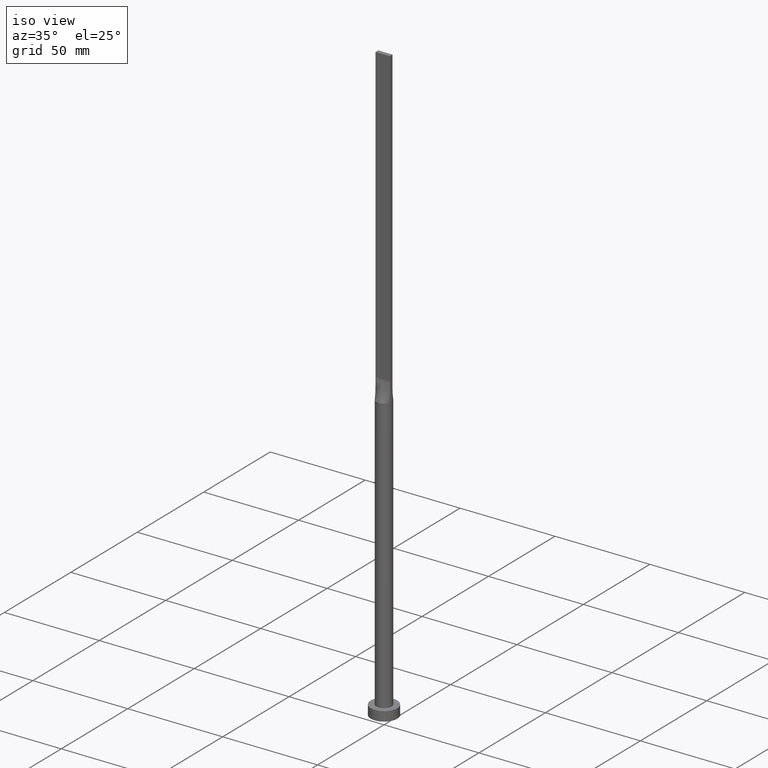
[diagram: clean part render]
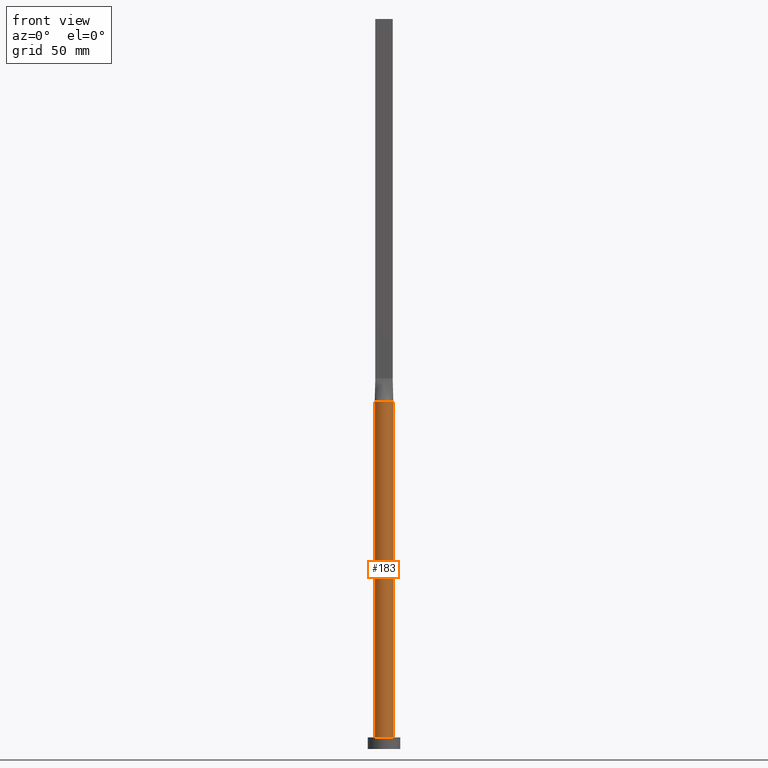
[diagram: tour spotlight — one face highlighted and labeled with its STEP entity id]
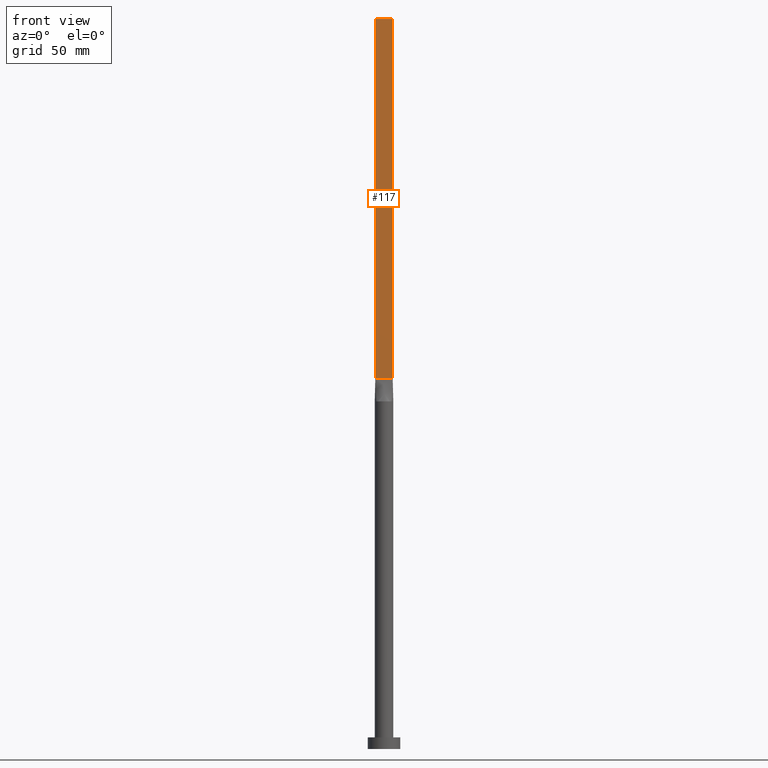
[diagram: tour spotlight — one face highlighted and labeled with its STEP entity id]
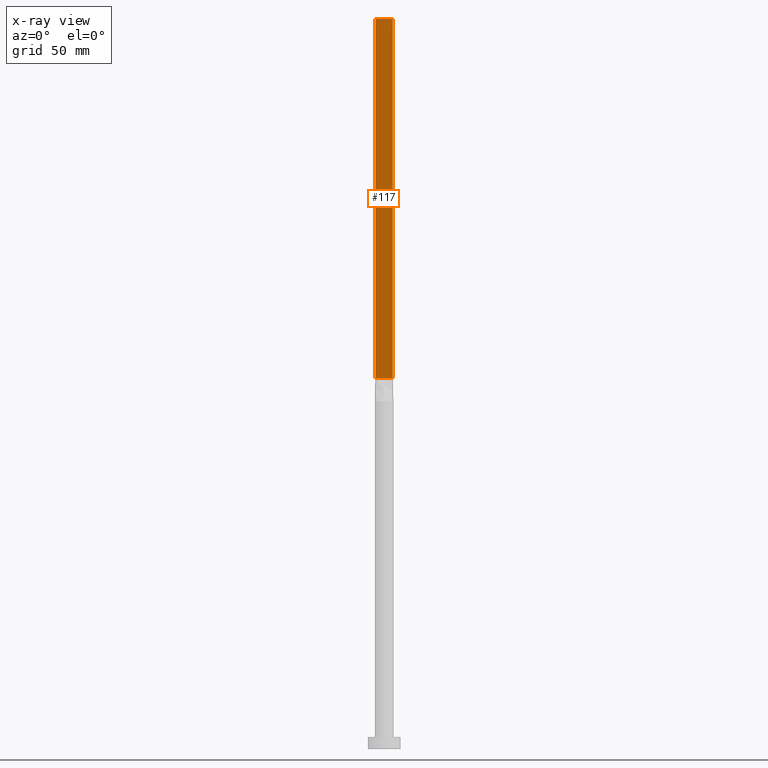
[diagram: x-ray of the same camera — body ghosted, this tour face saturated]
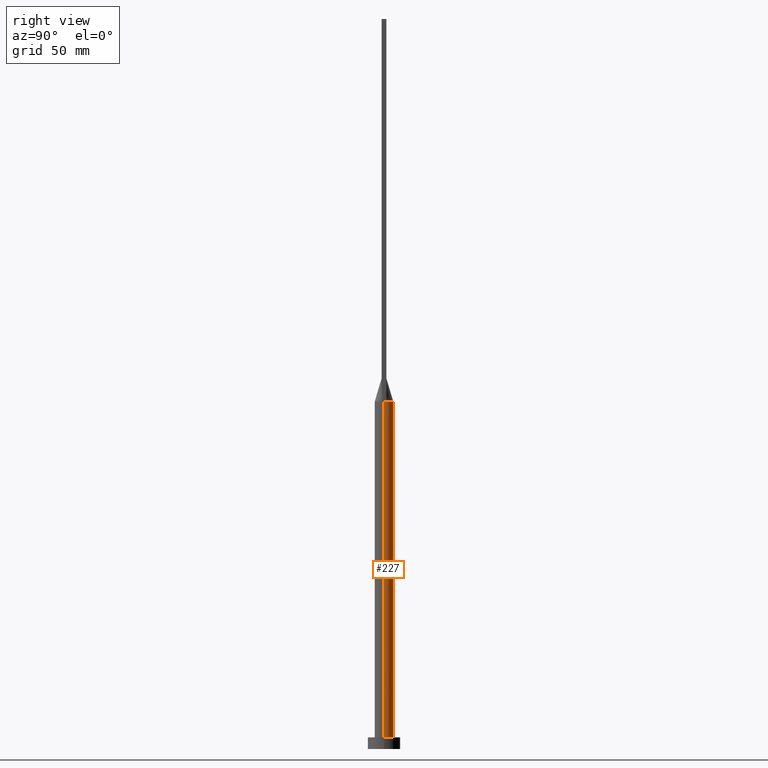
[diagram: tour spotlight — one face highlighted and labeled with its STEP entity id]
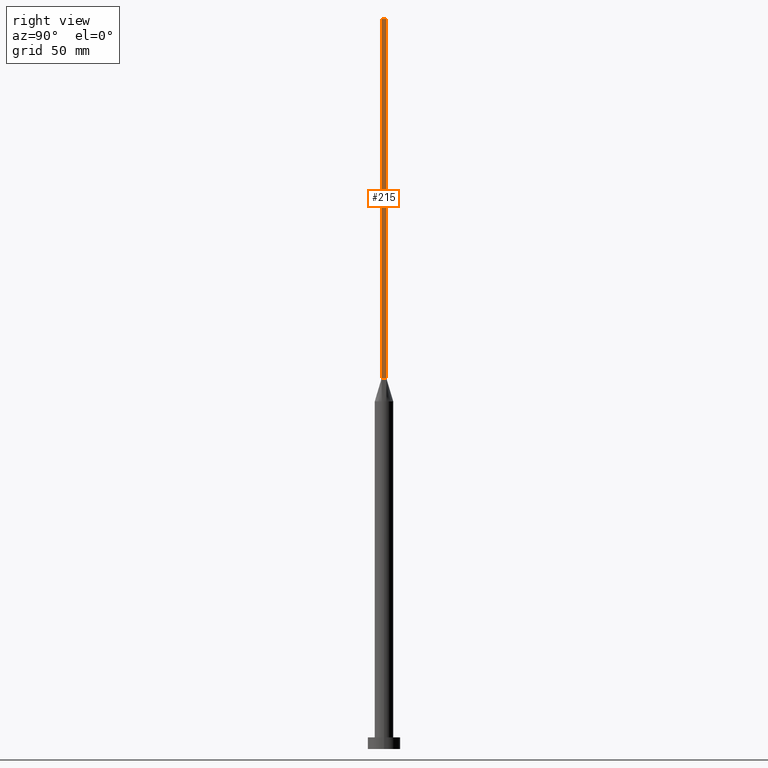
[diagram: tour spotlight — one face highlighted and labeled with its STEP entity id]
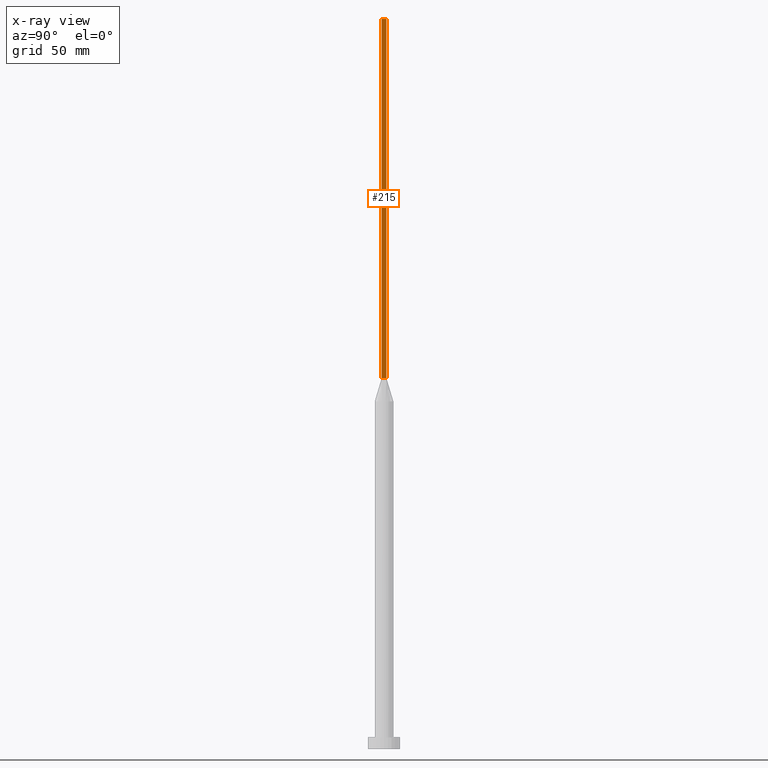
[diagram: x-ray of the same camera — body ghosted, this tour face saturated]
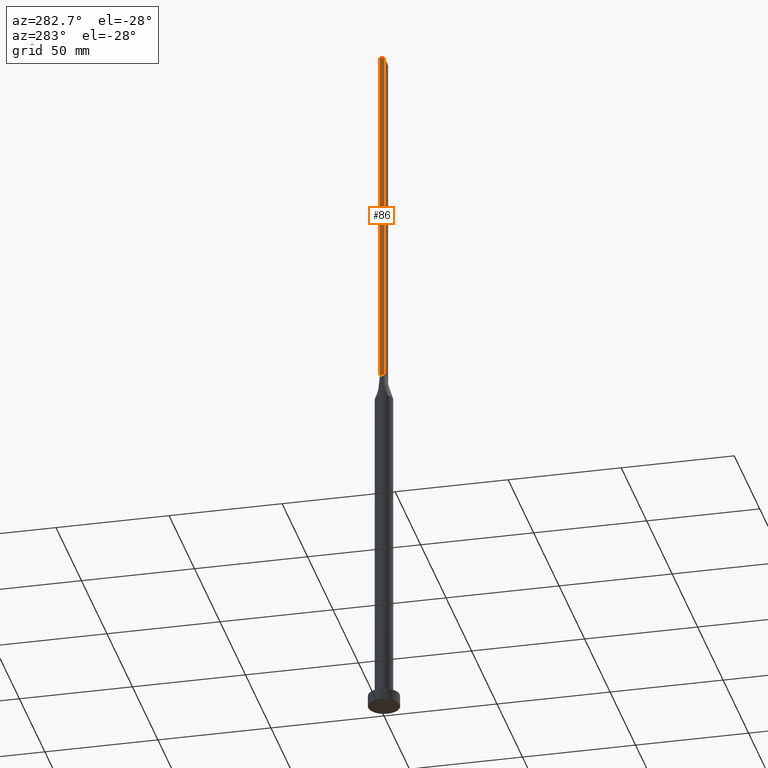
[diagram: tour spotlight — one face highlighted and labeled with its STEP entity id]
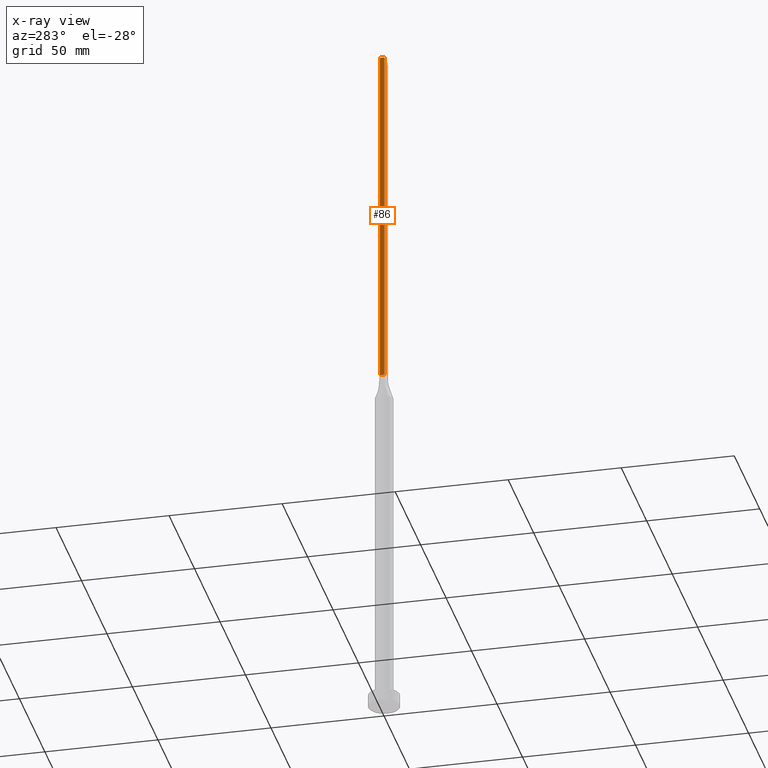
[diagram: x-ray of the same camera — body ghosted, this tour face saturated]
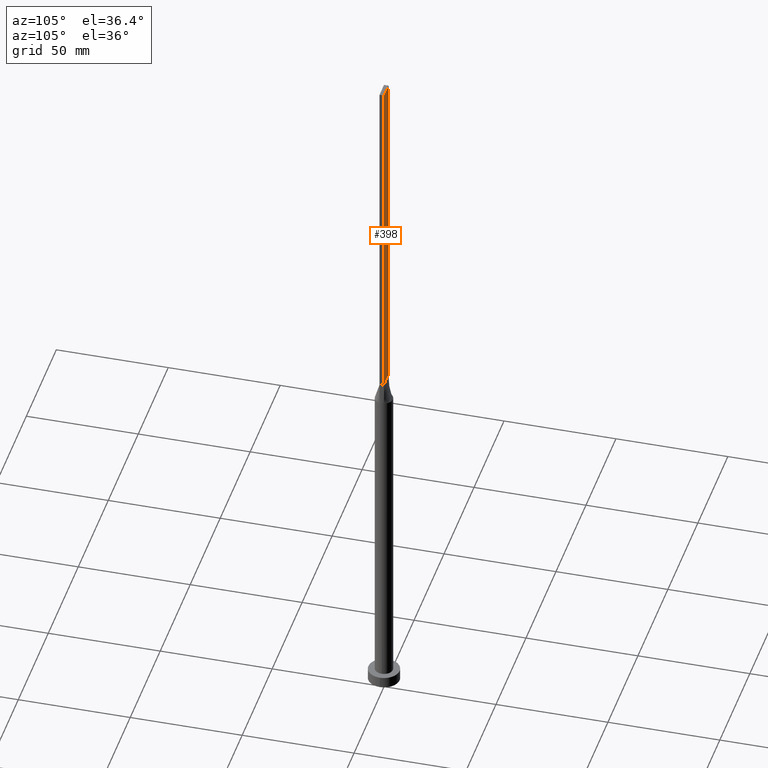
[diagram: tour spotlight — one face highlighted and labeled with its STEP entity id]
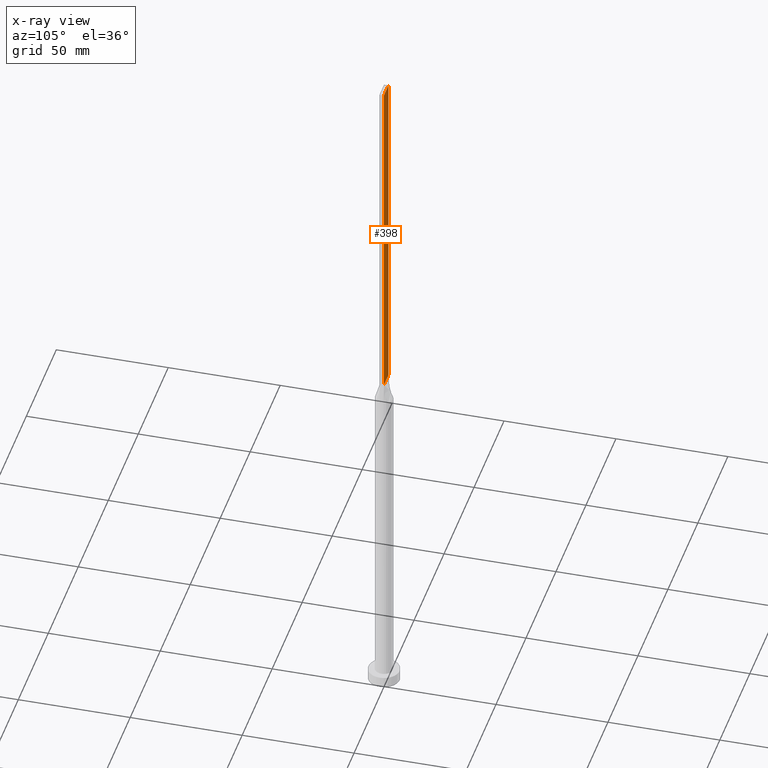
[diagram: x-ray of the same camera — body ghosted, this tour face saturated]
A machine part: a face-by-face anatomy tour. The part has 15 B-rep faces; the first image is the clean iso view, then the 6 largest visible faces are spotlighted one at a time (largest first), each with its STEP entity span.

Face 1 — front view, entity #183. In plain terms, the highlighted cylindrical surface (edge-blend (fillet) strip) has radius 4 mm, axis along (-0, -0, -1).
Definition (entity closure, byte-faithful):
#3 = EDGE_CURVE ( 'NONE', #90, #185, #107, .T. ) ;
#45 = VECTOR ( 'NONE', #448, 1000.000000000000000 ) ;
#48 = DIRECTION ( 'NONE',  ( 0.000000000000000000, 0.000000000000000000, 1.000000000000000000 ) ) ;
#54 = VECTOR ( 'NONE', #478, 1000.000000000000000 ) ;
#90 = VERTEX_POINT ( 'NONE', #125 ) ;
#91 = DIRECTION ( 'NONE',  ( 1.000000000000000000, 0.000000000000000000, 0.000000000000000000 ) ) ;
#107 = LINE ( 'NONE', #342, #54 ) ;
#125 = CARTESIAN_POINT ( 'NONE',  ( -4.000000000000000000, -2.459132308497027359E-16, 150.0000000000000000 ) ) ;
#130 = VERTEX_POINT ( 'NONE', #402 ) ;
#132 = ORIENTED_EDGE ( 'NONE', *, *, #275, .F. ) ;
#137 = DIRECTION ( 'NONE',  ( 0.000000000000000000, 0.000000000000000000, 1.000000000000000000 ) ) ;
#138 = ORIENTED_EDGE ( 'NONE', *, *, #250, .F. ) ;
#141 = EDGE_LOOP ( 'NONE', ( #230, #213, #138, #132, #502, #357 ) ) ;
#160 = AXIS2_PLACEMENT_3D ( 'NONE', #373, #48, #91 ) ;
#168 = DIRECTION ( 'NONE',  ( -0.000000000000000000, -0.000000000000000000, -1.000000000000000000 ) ) ;
#170 = CIRCLE ( 'NONE', #365, 4.000000000000000000 ) ;
#183 = ADVANCED_FACE ( 'NONE', ( #394 ), #572, .T. ) ;
#185 = VERTEX_POINT ( 'NONE', #356 ) ;
#190 = CIRCLE ( 'NONE', #513, 4.000000000000000000 ) ;
#198 = EDGE_CURVE ( 'NONE', #272, #130, #533, .T. ) ;
#213 = ORIENTED_EDGE ( 'NONE', *, *, #198, .F. ) ;
#220 = LINE ( 'NONE', #534, #45 ) ;
#230 = ORIENTED_EDGE ( 'NONE', *, *, #446, .F. ) ;
#235 = CARTESIAN_POINT ( 'NONE',  ( 0.000000000000000000, 0.000000000000000000, 150.0000000000000000 ) ) ;
#250 = EDGE_CURVE ( 'NONE', #464, #272, #170, .T. ) ;
#262 = DIRECTION ( 'NONE',  ( -1.000000000000000000, 0.000000000000000000, 0.000000000000000000 ) ) ;
#266 = DIRECTION ( 'NONE',  ( 0.000000000000000000, 0.000000000000000000, 1.000000000000000000 ) ) ;
#268 = EDGE_CURVE ( 'NONE', #185, #418, #553, .T. ) ;
#270 = CARTESIAN_POINT ( 'NONE',  ( 0.000000000000000000, 0.000000000000000000, 150.0000000000000000 ) ) ;
#272 = VERTEX_POINT ( 'NONE', #367 ) ;
#275 = EDGE_CURVE ( 'NONE', #90, #464, #190, .T. ) ;
#276 = AXIS2_PLACEMENT_3D ( 'NONE', #235, #266, #363 ) ;
#277 = CARTESIAN_POINT ( 'NONE',  ( 0.000000000000000000, 0.000000000000000000, 150.0000000000000000 ) ) ;
#315 = AXIS2_PLACEMENT_3D ( 'NONE', #577, #168, #262 ) ;
#341 = CARTESIAN_POINT ( 'NONE',  ( -3.865220763612065902, -1.030726602927787949, 150.0000000000000000 ) ) ;
#342 = CARTESIAN_POINT ( 'NONE',  ( -4.000000000000000000, 0.000000000000000000, 150.0000000000000000 ) ) ;
#356 = CARTESIAN_POINT ( 'NONE',  ( -4.000000000000000000, 0.000000000000000000, 5.000000000000000000 ) ) ;
#357 = ORIENTED_EDGE ( 'NONE', *, *, #268, .T. ) ;
#363 = DIRECTION ( 'NONE',  ( 1.000000000000000000, -6.217248937900876626E-15, 0.000000000000000000 ) ) ;
#365 = AXIS2_PLACEMENT_3D ( 'NONE', #270, #454, #504 ) ;
#367 = CARTESIAN_POINT ( 'NONE',  ( 3.865244591400370577, -1.030732999276501527, 150.0000000000000000 ) ) ;
#373 = CARTESIAN_POINT ( 'NONE',  ( 0.000000000000000000, 0.000000000000000000, 5.000000000000000000 ) ) ;
#379 = CARTESIAN_POINT ( 'NONE',  ( 4.000000000000000000, 4.898587196589412829E-16, 5.000000000000000000 ) ) ;
#394 = FACE_OUTER_BOUND ( 'NONE', #141, .T. ) ;
#402 = CARTESIAN_POINT ( 'NONE',  ( 4.000000000000000000, -1.256865613583667397E-17, 150.0000000000000000 ) ) ;
#418 = VERTEX_POINT ( 'NONE', #379 ) ;
#446 = EDGE_CURVE ( 'NONE', #130, #418, #220, .T. ) ;
#448 = DIRECTION ( 'NONE',  ( -0.000000000000000000, -0.000000000000000000, -1.000000000000000000 ) ) ;
#454 = DIRECTION ( 'NONE',  ( 0.000000000000000000, 0.000000000000000000, 1.000000000000000000 ) ) ;
#464 = VERTEX_POINT ( 'NONE', #341 ) ;
#478 = DIRECTION ( 'NONE',  ( -0.000000000000000000, -0.000000000000000000, -1.000000000000000000 ) ) ;
#502 = ORIENTED_EDGE ( 'NONE', *, *, #3, .T. ) ;
#504 = DIRECTION ( 'NONE',  ( 1.000000000000000000, 0.000000000000000000, 0.000000000000000000 ) ) ;
#513 = AXIS2_PLACEMENT_3D ( 'NONE', #277, #137, #546 ) ;
#533 = CIRCLE ( 'NONE', #276, 4.000000000000000000 ) ;
#534 = CARTESIAN_POINT ( 'NONE',  ( 4.000000000000000000, 4.898587196589412829E-16, 150.0000000000000000 ) ) ;
#546 = DIRECTION ( 'NONE',  ( 1.000000000000000000, 0.000000000000000000, 0.000000000000000000 ) ) ;
#553 = CIRCLE ( 'NONE', #160, 4.000000000000000000 ) ;
#572 = CYLINDRICAL_SURFACE ( 'NONE', #315, 4.000000000000000000 ) ;
#577 = CARTESIAN_POINT ( 'NONE',  ( 0.000000000000000000, 0.000000000000000000, 150.0000000000000000 ) ) ;

Face 2 — front view, entity #117. An x-ray twin of the same camera follows (body ghosted, this face saturated) — the face is partly hidden behind the body. In plain terms, the highlighted planar face has unit normal (0, 1, -0).
Definition (entity closure, byte-faithful):
#2 = CARTESIAN_POINT ( 'NONE',  ( 3.750000000000000000, -0.9999999999999997780, 315.0000000000000000 ) ) ;
#10 = EDGE_CURVE ( 'NONE', #364, #350, #384, .T. ) ;
#17 = VECTOR ( 'NONE', #335, 1000.000000000000000 ) ;
#33 = DIRECTION ( 'NONE',  ( 1.000000000000000000, -8.673617379884035472E-17, 0.000000000000000000 ) ) ;
#36 = ORIENTED_EDGE ( 'NONE', *, *, #99, .F. ) ;
#44 = CARTESIAN_POINT ( 'NONE',  ( -3.750000000000000000, -0.9999999999999991118, 315.0000000000000000 ) ) ;
#56 = EDGE_LOOP ( 'NONE', ( #374, #36, #100, #482 ) ) ;
#58 = CARTESIAN_POINT ( 'NONE',  ( -3.750000000000000000, -0.9999999999999991118, 315.0000000000000000 ) ) ;
#65 = CARTESIAN_POINT ( 'NONE',  ( -3.750000000000000000, -0.9999999999999991118, 160.0000000000000000 ) ) ;
#66 = EDGE_CURVE ( 'NONE', #322, #189, #485, .T. ) ;
#73 = CARTESIAN_POINT ( 'NONE',  ( -3.750000000000000000, -0.9999999999999991118, 315.0000000000000000 ) ) ;
#81 = CARTESIAN_POINT ( 'NONE',  ( -3.750000000000000000, -0.9999999999999991118, 315.0000000000000000 ) ) ;
#99 = EDGE_CURVE ( 'NONE', #189, #350, #449, .T. ) ;
#100 = ORIENTED_EDGE ( 'NONE', *, *, #66, .F. ) ;
#117 = ADVANCED_FACE ( 'NONE', ( #216 ), #400, .F. ) ;
#121 = DIRECTION ( 'NONE',  ( -0.000000000000000000, -0.000000000000000000, -1.000000000000000000 ) ) ;
#122 = VECTOR ( 'NONE', #121, 1000.000000000000000 ) ;
#169 = EDGE_CURVE ( 'NONE', #322, #364, #301, .T. ) ;
#189 = VERTEX_POINT ( 'NONE', #548 ) ;
#216 = FACE_OUTER_BOUND ( 'NONE', #56, .T. ) ;
#222 = DIRECTION ( 'NONE',  ( 8.673617379884036705E-17, 1.000000000000000000, -0.000000000000000000 ) ) ;
#292 = CARTESIAN_POINT ( 'NONE',  ( -3.750000000000000000, -0.9999999999999991118, 160.0000000000000000 ) ) ;
#301 = LINE ( 'NONE', #81, #395 ) ;
#322 = VERTEX_POINT ( 'NONE', #58 ) ;
#335 = DIRECTION ( 'NONE',  ( 1.000000000000000000, -8.673617379884035472E-17, 0.000000000000000000 ) ) ;
#350 = VERTEX_POINT ( 'NONE', #388 ) ;
#353 = VECTOR ( 'NONE', #33, 1000.000000000000000 ) ;
#364 = VERTEX_POINT ( 'NONE', #65 ) ;
#374 = ORIENTED_EDGE ( 'NONE', *, *, #10, .T. ) ;
#384 = LINE ( 'NONE', #292, #17 ) ;
#388 = CARTESIAN_POINT ( 'NONE',  ( 3.750000000000000000, -0.9999999999999997780, 160.0000000000000000 ) ) ;
#395 = VECTOR ( 'NONE', #447, 1000.000000000000000 ) ;
#400 = PLANE ( 'NONE',  #496 ) ;
#447 = DIRECTION ( 'NONE',  ( -0.000000000000000000, -0.000000000000000000, -1.000000000000000000 ) ) ;
#449 = LINE ( 'NONE', #2, #122 ) ;
#482 = ORIENTED_EDGE ( 'NONE', *, *, #169, .T. ) ;
#485 = LINE ( 'NONE', #44, #353 ) ;
#496 = AXIS2_PLACEMENT_3D ( 'NONE', #73, #222, #575 ) ;
#548 = CARTESIAN_POINT ( 'NONE',  ( 3.750000000000000000, -0.9999999999999997780, 315.0000000000000000 ) ) ;
#575 = DIRECTION ( 'NONE',  ( -1.000000000000000000, 8.673617379884036705E-17, 0.000000000000000000 ) ) ;

Face 3 — right view, entity #227. In plain terms, the highlighted cylindrical surface (edge-blend (fillet) strip) has radius 4 mm, axis along (-0, -0, -1).
Definition (entity closure, byte-faithful):
#1 = CARTESIAN_POINT ( 'NONE',  ( -1.023074425454088221, 3.898373771260455811, 149.9999999999999716 ) ) ;
#3 = EDGE_CURVE ( 'NONE', #90, #185, #107, .T. ) ;
#7 = CARTESIAN_POINT ( 'NONE',  ( 0.000000000000000000, 0.000000000000000000, 150.0000000000000000 ) ) ;
#14 = DIRECTION ( 'NONE',  ( -1.000000000000000000, 0.000000000000000000, 0.000000000000000000 ) ) ;
#20 = CARTESIAN_POINT ( 'NONE',  ( -1.940702937457743138, 3.532374760555930582, 149.9999999999999716 ) ) ;
#42 = CARTESIAN_POINT ( 'NONE',  ( 0.000000000000000000, 0.000000000000000000, 5.000000000000000000 ) ) ;
#45 = VECTOR ( 'NONE', #448, 1000.000000000000000 ) ;
#46 = EDGE_CURVE ( 'NONE', #418, #185, #468, .T. ) ;
#47 = CARTESIAN_POINT ( 'NONE',  ( -3.781952206537765537, 1.341853921743403788, 150.0000000000000000 ) ) ;
#49 = CARTESIAN_POINT ( 'NONE',  ( -2.346407003458401253, 3.270103945996944095, 150.0000000000000000 ) ) ;
#50 = FACE_OUTER_BOUND ( 'NONE', #118, .T. ) ;
#54 = VECTOR ( 'NONE', #478, 1000.000000000000000 ) ;
#60 = EDGE_CURVE ( 'NONE', #368, #90, #151, .T. ) ;
#83 = CARTESIAN_POINT ( 'NONE',  ( 0.000000000000000000, 0.000000000000000000, 150.0000000000000000 ) ) ;
#90 = VERTEX_POINT ( 'NONE', #125 ) ;
#96 = ORIENTED_EDGE ( 'NONE', *, *, #46, .T. ) ;
#107 = LINE ( 'NONE', #342, #54 ) ;
#113 = DIRECTION ( 'NONE',  ( 0.000000000000000000, 0.000000000000000000, 1.000000000000000000 ) ) ;
#118 = EDGE_LOOP ( 'NONE', ( #280, #372, #96, #417, #458, #217 ) ) ;
#125 = CARTESIAN_POINT ( 'NONE',  ( -4.000000000000000000, -2.459132308497027359E-16, 150.0000000000000000 ) ) ;
#130 = VERTEX_POINT ( 'NONE', #402 ) ;
#133 = CARTESIAN_POINT ( 'NONE',  ( 3.267840578657193795, 2.338604872288698289, 149.9999999999999432 ) ) ;
#151 = CIRCLE ( 'NONE', #469, 4.000000000000000000 ) ;
#175 = CARTESIAN_POINT ( 'NONE',  ( -3.653499896451231521, 1.673258289339058180, 149.9999999999999716 ) ) ;
#178 = VERTEX_POINT ( 'NONE', #259 ) ;
#185 = VERTEX_POINT ( 'NONE', #356 ) ;
#201 = AXIS2_PLACEMENT_3D ( 'NONE', #303, #113, #576 ) ;
#217 = ORIENTED_EDGE ( 'NONE', *, *, #578, .F. ) ;
#220 = LINE ( 'NONE', #534, #45 ) ;
#224 = CARTESIAN_POINT ( 'NONE',  ( -3.865236553917747120, 1.030730781768519622, 150.0000000000000000 ) ) ;
#227 = ADVANCED_FACE ( 'NONE', ( #50 ), #229, .T. ) ;
#228 = CARTESIAN_POINT ( 'NONE',  ( -3.009488128496037529, 2.672487015486668671, 150.0000000000000000 ) ) ;
#229 = CYLINDRICAL_SURFACE ( 'NONE', #278, 4.000000000000000000 ) ;
#237 = CARTESIAN_POINT ( 'NONE',  ( 3.865212754195084699, 1.030724393897464841, 150.0000000000000000 ) ) ;
#253 = DIRECTION ( 'NONE',  ( 1.000000000000000000, 0.000000000000000000, 0.000000000000000000 ) ) ;
#259 = CARTESIAN_POINT ( 'NONE',  ( 3.865212754195084699, 1.030724393897464841, 150.0000000000000000 ) ) ;
#264 = DIRECTION ( 'NONE',  ( 1.000000000000000000, 0.000000000000000000, 0.000000000000000000 ) ) ;
#269 = CARTESIAN_POINT ( 'NONE',  ( 1.023074425454087999, 3.898373771260456255, 149.9999999999999716 ) ) ;
#278 = AXIS2_PLACEMENT_3D ( 'NONE', #7, #506, #14 ) ;
#280 = ORIENTED_EDGE ( 'NONE', *, *, #516, .F. ) ;
#282 = B_SPLINE_CURVE_WITH_KNOTS ( 'NONE', 3,
 ( #237, #284, #288, #133, #316, #467, #330, #269, #426, #451, #1, #20, #49, #228, #512, #175, #47, #224 ),
 .UNSPECIFIED., .F., .F.,
 ( 4, 2, 2, 2, 2, 2, 2, 2, 4 ),
 ( 0.000000000000000000, 0.1250000000000000000, 0.2500000000000000000, 0.3750000000000000000, 0.5000000000000000000, 0.6250000000000000000, 0.7500000000000000000, 0.8750000000000000000, 1.000000000000000000 ),
 .UNSPECIFIED. ) ;
#284 = CARTESIAN_POINT ( 'NONE',  ( 3.781952206537764205, 1.341853921743403788, 150.0000000000000568 ) ) ;
#288 = CARTESIAN_POINT ( 'NONE',  ( 3.653499896451231521, 1.673258289339057958, 150.0000000000000000 ) ) ;
#303 = CARTESIAN_POINT ( 'NONE',  ( 0.000000000000000000, 0.000000000000000000, 150.0000000000000000 ) ) ;
#307 = DIRECTION ( 'NONE',  ( 0.000000000000000000, 0.000000000000000000, 1.000000000000000000 ) ) ;
#316 = CARTESIAN_POINT ( 'NONE',  ( 3.009488128496037085, 2.672487015486669115, 150.0000000000000000 ) ) ;
#330 = CARTESIAN_POINT ( 'NONE',  ( 1.940702937457743582, 3.532374760555930582, 149.9999999999999716 ) ) ;
#342 = CARTESIAN_POINT ( 'NONE',  ( -4.000000000000000000, 0.000000000000000000, 150.0000000000000000 ) ) ;
#343 = AXIS2_PLACEMENT_3D ( 'NONE', #42, #443, #253 ) ;
#356 = CARTESIAN_POINT ( 'NONE',  ( -4.000000000000000000, 0.000000000000000000, 5.000000000000000000 ) ) ;
#368 = VERTEX_POINT ( 'NONE', #382 ) ;
#372 = ORIENTED_EDGE ( 'NONE', *, *, #446, .T. ) ;
#379 = CARTESIAN_POINT ( 'NONE',  ( 4.000000000000000000, 4.898587196589412829E-16, 5.000000000000000000 ) ) ;
#382 = CARTESIAN_POINT ( 'NONE',  ( -3.865236553917747120, 1.030730781768519622, 150.0000000000000000 ) ) ;
#402 = CARTESIAN_POINT ( 'NONE',  ( 4.000000000000000000, -1.256865613583667397E-17, 150.0000000000000000 ) ) ;
#417 = ORIENTED_EDGE ( 'NONE', *, *, #3, .F. ) ;
#418 = VERTEX_POINT ( 'NONE', #379 ) ;
#426 = CARTESIAN_POINT ( 'NONE',  ( 0.5121855420560009753, 4.000000000000000888, 150.0000000000000000 ) ) ;
#443 = DIRECTION ( 'NONE',  ( 0.000000000000000000, 0.000000000000000000, 1.000000000000000000 ) ) ;
#446 = EDGE_CURVE ( 'NONE', #130, #418, #220, .T. ) ;
#448 = DIRECTION ( 'NONE',  ( -0.000000000000000000, -0.000000000000000000, -1.000000000000000000 ) ) ;
#451 = CARTESIAN_POINT ( 'NONE',  ( -0.5121855420560009753, 4.000000000000000888, 150.0000000000000000 ) ) ;
#458 = ORIENTED_EDGE ( 'NONE', *, *, #60, .F. ) ;
#467 = CARTESIAN_POINT ( 'NONE',  ( 2.346407003458400808, 3.270103945996944983, 150.0000000000000000 ) ) ;
#468 = CIRCLE ( 'NONE', #343, 4.000000000000000000 ) ;
#469 = AXIS2_PLACEMENT_3D ( 'NONE', #83, #307, #264 ) ;
#478 = DIRECTION ( 'NONE',  ( -0.000000000000000000, -0.000000000000000000, -1.000000000000000000 ) ) ;
#506 = DIRECTION ( 'NONE',  ( -0.000000000000000000, -0.000000000000000000, -1.000000000000000000 ) ) ;
#512 = CARTESIAN_POINT ( 'NONE',  ( -3.267840578657194239, 2.338604872288698289, 149.9999999999999716 ) ) ;
#516 = EDGE_CURVE ( 'NONE', #130, #178, #524, .T. ) ;
#524 = CIRCLE ( 'NONE', #201, 4.000000000000000000 ) ;
#534 = CARTESIAN_POINT ( 'NONE',  ( 4.000000000000000000, 4.898587196589412829E-16, 150.0000000000000000 ) ) ;
#576 = DIRECTION ( 'NONE',  ( 1.000000000000000000, 0.000000000000000000, 0.000000000000000000 ) ) ;
#578 = EDGE_CURVE ( 'NONE', #178, #368, #282, .T. ) ;

Face 4 — right view, entity #215. An x-ray twin of the same camera follows (body ghosted, this face saturated) — the face is partly hidden behind the body. In plain terms, the highlighted planar face has unit normal (-1, 0, 0).
Definition (entity closure, byte-faithful):
#2 = CARTESIAN_POINT ( 'NONE',  ( 3.750000000000000000, -0.9999999999999997780, 315.0000000000000000 ) ) ;
#11 = ORIENTED_EDGE ( 'NONE', *, *, #139, .T. ) ;
#53 = ORIENTED_EDGE ( 'NONE', *, *, #320, .F. ) ;
#75 = LINE ( 'NONE', #407, #459 ) ;
#87 = DIRECTION ( 'NONE',  ( -0.000000000000000000, -0.000000000000000000, -1.000000000000000000 ) ) ;
#88 = VECTOR ( 'NONE', #514, 1000.000000000000000 ) ;
#89 = PLANE ( 'NONE',  #95 ) ;
#95 = AXIS2_PLACEMENT_3D ( 'NONE', #273, #541, #452 ) ;
#99 = EDGE_CURVE ( 'NONE', #189, #350, #449, .T. ) ;
#105 = VECTOR ( 'NONE', #87, 1000.000000000000000 ) ;
#116 = DIRECTION ( 'NONE',  ( -0.000000000000000000, 1.000000000000000000, -0.000000000000000000 ) ) ;
#121 = DIRECTION ( 'NONE',  ( -0.000000000000000000, -0.000000000000000000, -1.000000000000000000 ) ) ;
#122 = VECTOR ( 'NONE', #121, 1000.000000000000000 ) ;
#139 = EDGE_CURVE ( 'NONE', #350, #507, #75, .T. ) ;
#148 = CARTESIAN_POINT ( 'NONE',  ( 3.750000000000000000, -0.9999999999999997780, 315.0000000000000000 ) ) ;
#167 = CARTESIAN_POINT ( 'NONE',  ( 3.750000000000000000, 1.000000000000000000, 160.0000000000000000 ) ) ;
#189 = VERTEX_POINT ( 'NONE', #548 ) ;
#193 = LINE ( 'NONE', #545, #105 ) ;
#215 = ADVANCED_FACE ( 'NONE', ( #321 ), #89, .F. ) ;
#246 = LINE ( 'NONE', #148, #88 ) ;
#273 = CARTESIAN_POINT ( 'NONE',  ( 3.750000000000000000, -0.9999999999999997780, 315.0000000000000000 ) ) ;
#283 = ORIENTED_EDGE ( 'NONE', *, *, #99, .T. ) ;
#320 = EDGE_CURVE ( 'NONE', #189, #419, #246, .T. ) ;
#321 = FACE_OUTER_BOUND ( 'NONE', #461, .T. ) ;
#325 = CARTESIAN_POINT ( 'NONE',  ( 3.750000000000000000, 1.000000000000000000, 315.0000000000000000 ) ) ;
#350 = VERTEX_POINT ( 'NONE', #388 ) ;
#388 = CARTESIAN_POINT ( 'NONE',  ( 3.750000000000000000, -0.9999999999999997780, 160.0000000000000000 ) ) ;
#407 = CARTESIAN_POINT ( 'NONE',  ( 3.750000000000000000, 1.000000000000000000, 160.0000000000000000 ) ) ;
#419 = VERTEX_POINT ( 'NONE', #325 ) ;
#449 = LINE ( 'NONE', #2, #122 ) ;
#452 = DIRECTION ( 'NONE',  ( 0.000000000000000000, 0.000000000000000000, 1.000000000000000000 ) ) ;
#459 = VECTOR ( 'NONE', #116, 1000.000000000000000 ) ;
#461 = EDGE_LOOP ( 'NONE', ( #11, #492, #53, #283 ) ) ;
#492 = ORIENTED_EDGE ( 'NONE', *, *, #530, .F. ) ;
#507 = VERTEX_POINT ( 'NONE', #167 ) ;
#514 = DIRECTION ( 'NONE',  ( 0.000000000000000000, 1.000000000000000000, 0.000000000000000000 ) ) ;
#530 = EDGE_CURVE ( 'NONE', #419, #507, #193, .T. ) ;
#541 = DIRECTION ( 'NONE',  ( -1.000000000000000000, 0.000000000000000000, 0.000000000000000000 ) ) ;
#545 = CARTESIAN_POINT ( 'NONE',  ( 3.750000000000000000, 1.000000000000000000, 315.0000000000000000 ) ) ;
#548 = CARTESIAN_POINT ( 'NONE',  ( 3.750000000000000000, -0.9999999999999997780, 315.0000000000000000 ) ) ;

Face 5 — auxiliary view, entity #86. An x-ray twin of the same camera follows (body ghosted, this face saturated) — the face is partly hidden behind the body. In plain terms, the highlighted planar face has unit normal (1, 0, -0).
Definition (entity closure, byte-faithful):
#8 = VERTEX_POINT ( 'NONE', #557 ) ;
#15 = VERTEX_POINT ( 'NONE', #389 ) ;
#35 = DIRECTION ( 'NONE',  ( 1.000000000000000000, 0.000000000000000000, -0.000000000000000000 ) ) ;
#37 = EDGE_CURVE ( 'NONE', #15, #8, #339, .T. ) ;
#58 = CARTESIAN_POINT ( 'NONE',  ( -3.750000000000000000, -0.9999999999999991118, 315.0000000000000000 ) ) ;
#63 = DIRECTION ( 'NONE',  ( 0.000000000000000000, -1.000000000000000000, 0.000000000000000000 ) ) ;
#65 = CARTESIAN_POINT ( 'NONE',  ( -3.750000000000000000, -0.9999999999999991118, 160.0000000000000000 ) ) ;
#81 = CARTESIAN_POINT ( 'NONE',  ( -3.750000000000000000, -0.9999999999999991118, 315.0000000000000000 ) ) ;
#86 = ADVANCED_FACE ( 'NONE', ( #532 ), #439, .F. ) ;
#93 = EDGE_CURVE ( 'NONE', #8, #364, #304, .T. ) ;
#163 = CARTESIAN_POINT ( 'NONE',  ( -3.750000000000000000, 1.000000000000000000, 160.0000000000000000 ) ) ;
#169 = EDGE_CURVE ( 'NONE', #322, #364, #301, .T. ) ;
#212 = CARTESIAN_POINT ( 'NONE',  ( -3.750000000000000000, 1.000000000000000000, 315.0000000000000000 ) ) ;
#232 = EDGE_LOOP ( 'NONE', ( #326, #499, #279, #455 ) ) ;
#279 = ORIENTED_EDGE ( 'NONE', *, *, #358, .F. ) ;
#285 = LINE ( 'NONE', #565, #405 ) ;
#299 = DIRECTION ( 'NONE',  ( -0.000000000000000000, -0.000000000000000000, -1.000000000000000000 ) ) ;
#301 = LINE ( 'NONE', #81, #395 ) ;
#304 = LINE ( 'NONE', #163, #383 ) ;
#309 = DIRECTION ( 'NONE',  ( 0.000000000000000000, -1.000000000000000000, 0.000000000000000000 ) ) ;
#322 = VERTEX_POINT ( 'NONE', #58 ) ;
#326 = ORIENTED_EDGE ( 'NONE', *, *, #93, .T. ) ;
#339 = LINE ( 'NONE', #523, #413 ) ;
#358 = EDGE_CURVE ( 'NONE', #15, #322, #285, .T. ) ;
#364 = VERTEX_POINT ( 'NONE', #65 ) ;
#383 = VECTOR ( 'NONE', #309, 1000.000000000000000 ) ;
#389 = CARTESIAN_POINT ( 'NONE',  ( -3.750000000000000000, 1.000000000000000000, 315.0000000000000000 ) ) ;
#395 = VECTOR ( 'NONE', #447, 1000.000000000000000 ) ;
#405 = VECTOR ( 'NONE', #63, 1000.000000000000000 ) ;
#413 = VECTOR ( 'NONE', #299, 1000.000000000000000 ) ;
#423 = AXIS2_PLACEMENT_3D ( 'NONE', #212, #35, #494 ) ;
#439 = PLANE ( 'NONE',  #423 ) ;
#447 = DIRECTION ( 'NONE',  ( -0.000000000000000000, -0.000000000000000000, -1.000000000000000000 ) ) ;
#455 = ORIENTED_EDGE ( 'NONE', *, *, #37, .T. ) ;
#494 = DIRECTION ( 'NONE',  ( -0.000000000000000000, 0.000000000000000000, -1.000000000000000000 ) ) ;
#499 = ORIENTED_EDGE ( 'NONE', *, *, #169, .F. ) ;
#523 = CARTESIAN_POINT ( 'NONE',  ( -3.750000000000000000, 1.000000000000000000, 315.0000000000000000 ) ) ;
#532 = FACE_OUTER_BOUND ( 'NONE', #232, .T. ) ;
#557 = CARTESIAN_POINT ( 'NONE',  ( -3.750000000000000000, 1.000000000000000000, 160.0000000000000000 ) ) ;
#565 = CARTESIAN_POINT ( 'NONE',  ( -3.750000000000000000, 1.000000000000000000, 315.0000000000000000 ) ) ;

Face 6 — auxiliary view, entity #398. An x-ray twin of the same camera follows (body ghosted, this face saturated) — the face is partly hidden behind the body. In plain terms, the highlighted planar face has unit normal (0, -1, 0).
Definition (entity closure, byte-faithful):
#8 = VERTEX_POINT ( 'NONE', #557 ) ;
#15 = VERTEX_POINT ( 'NONE', #389 ) ;
#26 = AXIS2_PLACEMENT_3D ( 'NONE', #30, #289, #466 ) ;
#30 = CARTESIAN_POINT ( 'NONE',  ( 3.750000000000000000, 1.000000000000000000, 315.0000000000000000 ) ) ;
#37 = EDGE_CURVE ( 'NONE', #15, #8, #339, .T. ) ;
#62 = VECTOR ( 'NONE', #142, 1000.000000000000000 ) ;
#74 = CARTESIAN_POINT ( 'NONE',  ( 3.750000000000000000, 1.000000000000000000, 315.0000000000000000 ) ) ;
#76 = ORIENTED_EDGE ( 'NONE', *, *, #37, .F. ) ;
#87 = DIRECTION ( 'NONE',  ( -0.000000000000000000, -0.000000000000000000, -1.000000000000000000 ) ) ;
#105 = VECTOR ( 'NONE', #87, 1000.000000000000000 ) ;
#128 = LINE ( 'NONE', #74, #354 ) ;
#142 = DIRECTION ( 'NONE',  ( -1.000000000000000000, -0.000000000000000000, -0.000000000000000000 ) ) ;
#158 = EDGE_LOOP ( 'NONE', ( #324, #76, #226, #542 ) ) ;
#167 = CARTESIAN_POINT ( 'NONE',  ( 3.750000000000000000, 1.000000000000000000, 160.0000000000000000 ) ) ;
#188 = EDGE_CURVE ( 'NONE', #507, #8, #535, .T. ) ;
#193 = LINE ( 'NONE', #545, #105 ) ;
#226 = ORIENTED_EDGE ( 'NONE', *, *, #462, .F. ) ;
#249 = PLANE ( 'NONE',  #26 ) ;
#289 = DIRECTION ( 'NONE',  ( 0.000000000000000000, -1.000000000000000000, 0.000000000000000000 ) ) ;
#299 = DIRECTION ( 'NONE',  ( -0.000000000000000000, -0.000000000000000000, -1.000000000000000000 ) ) ;
#324 = ORIENTED_EDGE ( 'NONE', *, *, #188, .T. ) ;
#325 = CARTESIAN_POINT ( 'NONE',  ( 3.750000000000000000, 1.000000000000000000, 315.0000000000000000 ) ) ;
#339 = LINE ( 'NONE', #523, #413 ) ;
#354 = VECTOR ( 'NONE', #406, 1000.000000000000000 ) ;
#389 = CARTESIAN_POINT ( 'NONE',  ( -3.750000000000000000, 1.000000000000000000, 315.0000000000000000 ) ) ;
#398 = ADVANCED_FACE ( 'NONE', ( #434 ), #249, .F. ) ;
#406 = DIRECTION ( 'NONE',  ( -1.000000000000000000, 0.000000000000000000, 0.000000000000000000 ) ) ;
#413 = VECTOR ( 'NONE', #299, 1000.000000000000000 ) ;
#416 = CARTESIAN_POINT ( 'NONE',  ( -3.750000000000000000, 1.000000000000000000, 160.0000000000000000 ) ) ;
#419 = VERTEX_POINT ( 'NONE', #325 ) ;
#434 = FACE_OUTER_BOUND ( 'NONE', #158, .T. ) ;
#462 = EDGE_CURVE ( 'NONE', #419, #15, #128, .T. ) ;
#466 = DIRECTION ( 'NONE',  ( 0.000000000000000000, -0.000000000000000000, -1.000000000000000000 ) ) ;
#507 = VERTEX_POINT ( 'NONE', #167 ) ;
#523 = CARTESIAN_POINT ( 'NONE',  ( -3.750000000000000000, 1.000000000000000000, 315.0000000000000000 ) ) ;
#530 = EDGE_CURVE ( 'NONE', #419, #507, #193, .T. ) ;
#535 = LINE ( 'NONE', #416, #62 ) ;
#542 = ORIENTED_EDGE ( 'NONE', *, *, #530, .T. ) ;
#545 = CARTESIAN_POINT ( 'NONE',  ( 3.750000000000000000, 1.000000000000000000, 315.0000000000000000 ) ) ;
#557 = CARTESIAN_POINT ( 'NONE',  ( -3.750000000000000000, 1.000000000000000000, 160.0000000000000000 ) ) ;